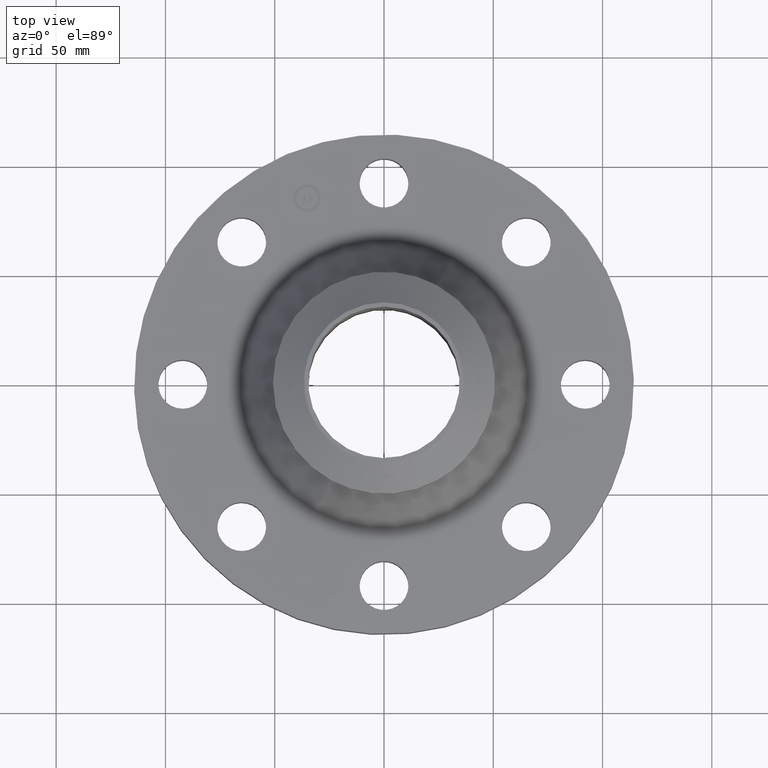
[diagram: clean part render]
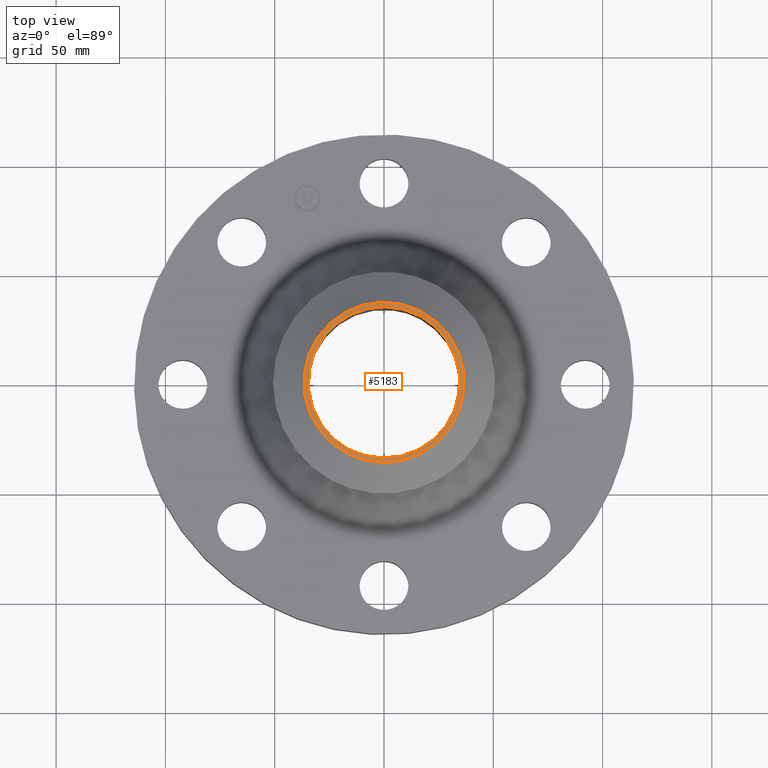
[diagram: same view with one face highlighted and labeled with its STEP entity id]
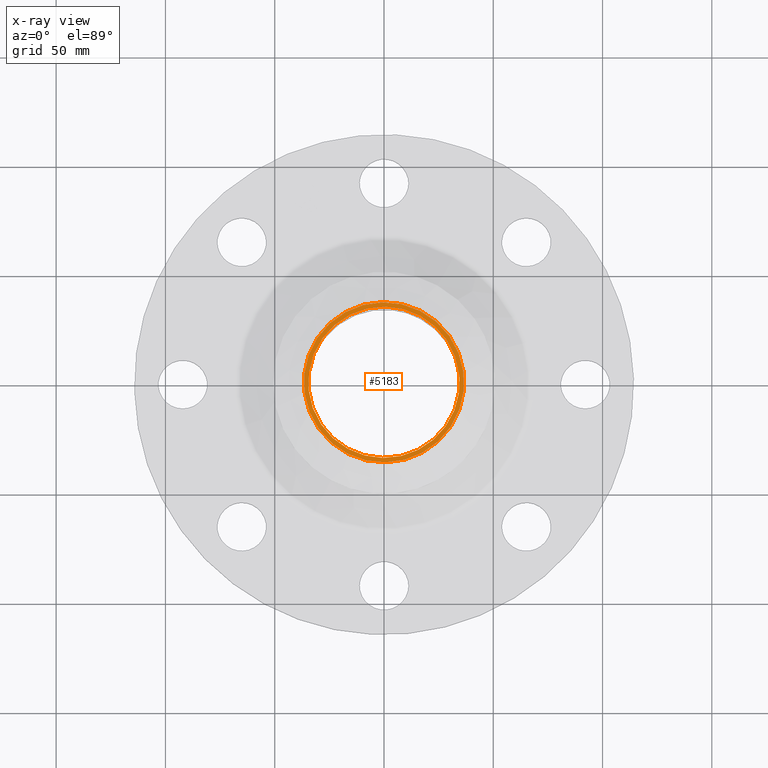
[diagram: x-ray of the same camera — body ghosted, the highlighted face saturated]
A machine part, top view. The second image highlights one B-rep face of the part: STEP entity #5183.
The next image is the same camera in x-ray: the body ghosted, the highlighted face saturated — about 0% of this face is hidden behind the body in this view.
In plain terms, the highlighted planar face has unit normal (0, 0, -1).
Its self-contained STEP definition (entity closure, byte-faithful):
#2170=AXIS2_PLACEMENT_3D('Circle Axis2P3D',#2168,#2169,$) ;
#2202=AXIS2_PLACEMENT_3D('Circle Axis2P3D',#2200,#2201,$) ;
#5159=AXIS2_PLACEMENT_3D('Plane Axis2P3D',#5156,#5157,#5158) ;
#5167=AXIS2_PLACEMENT_3D('Circle Axis2P3D',#5165,#5166,$) ;
#5176=AXIS2_PLACEMENT_3D('Circle Axis2P3D',#5174,#5175,$) ;
#2165=CARTESIAN_POINT('Vertex',(0.69168647707,-1.26612360355,3.13000000001)) ;
#2168=CARTESIAN_POINT('Axis2P3D Location',(0.,0.,3.13000000001)) ;
#2172=CARTESIAN_POINT('Vertex',(-0.691686477071,1.26612360355,3.13000000001)) ;
#2200=CARTESIAN_POINT('Axis2P3D Location',(0.,0.,3.13000000001)) ;
#5156=CARTESIAN_POINT('Axis2P3D Location',(0.,2.00000000001,3.13000000001)) ;
#5165=CARTESIAN_POINT('Axis2P3D Location',(4.3665228913E-011,-6.52104791862E-012,3.13000000001)) ;
#5169=CARTESIAN_POINT('Vertex',(-0.653936434661,-1.19702261443,3.13)) ;
#5171=CARTESIAN_POINT('Vertex',(0.653936434661,1.19702261443,3.13)) ;
#5174=CARTESIAN_POINT('Axis2P3D Location',(-4.3665228913E-011,4.11877006691E-011,3.13000000001)) ;
#2169=DIRECTION('Axis2P3D Direction',(-0.,0.,-0.0393700787402)) ;
#2201=DIRECTION('Axis2P3D Direction',(-0.,0.,-0.0393700787402)) ;
#5157=DIRECTION('Axis2P3D Direction',(0.,0.,-0.0393700787402)) ;
#5158=DIRECTION('Axis2P3D XDirection',(0.0393700787402,0.,0.)) ;
#5166=DIRECTION('Axis2P3D Direction',(0.,0.,-0.0393700787402)) ;
#5175=DIRECTION('Axis2P3D Direction',(0.,0.,-0.0393700787402)) ;
#5162=ORIENTED_EDGE('',*,*,#2204,.T.) ;
#5163=ORIENTED_EDGE('',*,*,#2174,.T.) ;
#5180=ORIENTED_EDGE('',*,*,#5173,.T.) ;
#5181=ORIENTED_EDGE('',*,*,#5178,.T.) ;
#5182=FACE_BOUND('',#5179,.T.) ;
#5183=ADVANCED_FACE('PartBody',(#5164,#5182),#5160,.F.) ;
#2171=CIRCLE('generated circle',#2170,1.44274015749) ;
#2203=CIRCLE('generated circle',#2202,1.44274015749) ;
#5168=CIRCLE('generated circle',#5167,1.36400000003) ;
#5177=CIRCLE('generated circle',#5176,1.36400000003) ;
#2174=EDGE_CURVE('',#2173,#2166,#2171,.F.) ;
#2204=EDGE_CURVE('',#2166,#2173,#2203,.F.) ;
#5173=EDGE_CURVE('',#5170,#5172,#5168,.T.) ;
#5178=EDGE_CURVE('',#5172,#5170,#5177,.T.) ;
#5161=EDGE_LOOP('',(#5162,#5163)) ;
#5179=EDGE_LOOP('',(#5180,#5181)) ;
#5164=FACE_OUTER_BOUND('',#5161,.T.) ;
#5160=PLANE('',#5159) ;
#2166=VERTEX_POINT('',#2165) ;
#2173=VERTEX_POINT('',#2172) ;
#5170=VERTEX_POINT('',#5169) ;
#5172=VERTEX_POINT('',#5171) ;